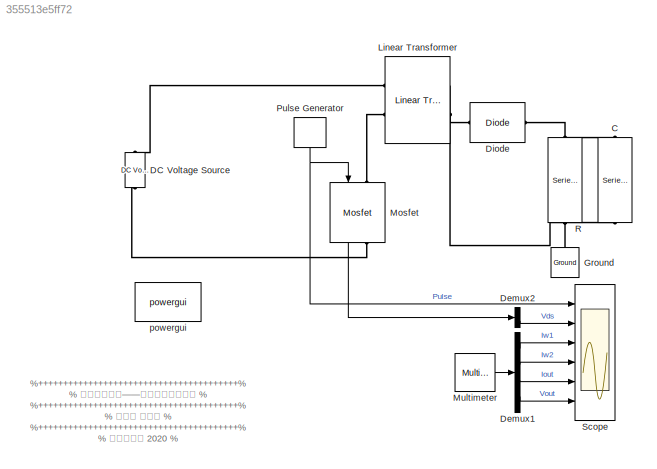
MODEL slx_355513e5ff72
KIND model
BLOCK [Reference] C   REF=powerlib/Elements/Series RLC Branch
  BranchType = C
  Capacitance = 1000e-6
  Inductance = 1e-3
  InitialCurrent = 0
  InitialVoltage = 0
  LConnTagsString = __new0
  Measurements = Branch voltage
  Ports = [0, 0, 0, 0, 0, 1, 1]
  RConnTagsString = __new0
  Resistance = 1
  SetiL0 = off
  Setx0 = off
  SourceBlock = powerlib/Elements/Series RLC Branch
  SourceType = Series RLC Branch
BLOCK [Reference] DC Voltage Source  REF=powerlib/Electrical
Sources/DC Voltage Source
  Amplitude = 100
  Measurements = None
  Ports = [0, 0, 0, 0, 0, 1, 1]
  SourceBlock = powerlib/Electrical\nSources/DC Voltage Source
  SourceType = DC Voltage Source
BLOCK [Demux] Demux1
  DisplayOption = bar
  Ports = [1, 4]
BLOCK [Demux] Demux2
  DisplayOption = bar
  Outputs = 2
  Ports = [1, 2]
BLOCK [Reference] Diode  REF=powerlib/Power
Electronics/Diode
  Cs = Inf
  IC = 0
  Lon = 1e-8
  Measurements = off
  Ports = [0, 0, 0, 0, 0, 1, 1]
  Ron = 0.05
  Rs = 1e5
  SourceBlock = powerlib/Power\nElectronics/Diode
  SourceType = Diode
  UseSnubber = off
  Vf = 0.7
BLOCK [Reference] Ground  REF=powerlib/Elements/Ground
  LConnTagsString = a
  Ports = [0, 0, 0, 0, 0, 1]
  SourceBlock = powerlib/Elements/Ground
  SourceType = Ground
BLOCK [Reference] Linear Transformer  REF=powerlib/Elements/Linear Transformer
  DataType = on
  Measurements = Winding currents
  NominalPower = [250e6 60]
  Ports = [0, 0, 0, 0, 0, 2, 2]
  RmLm = [Inf 500e-6]
  SourceBlock = powerlib/Elements/Linear Transformer
  SourceType = Linear Transformer
  ThreeWindings = off
  UNITS = SI
  winding1 = [100 0 0]
  winding2 = [20 0 0]
  winding3 = [3.15e+05 0.7938 0.084223]
BLOCK [Reference] Mosfet  REF=powerlib/Power
Electronics/Mosfet
  Cs = inf
  IC = 0
  Lon = 0
  Measurements = on
  Ports = [1, 1, 0, 0, 0, 1, 1]
  Rd = 0.01
  Ron = 0.1
  Rs = 1e5
  SourceBlock = powerlib/Power\nElectronics/Mosfet
  SourceType = Mosfet
  Vfd = 0
BLOCK [Reference] Multimeter  REF=powerlib/Measurements/Multimeter
  AxesSetting = [0,0.1,-100,100]
  Display = 0
  Gain = [1 1 1 1]
  L = 4
  OutputType = Complex
  PSBOutputType = 1
  PSBequivalent = 0
  PhasorSimulation = off
  Ports = [0, 1]
  SavedBlockNames = -11
  SourceBlock = powerlib/Measurements/Multimeter
  SourceType = MultimeterPSB
  sel = [3 4 2 1]
  yselected = {'Iw1: Linear Transformer','Iw2: Linear Transformer','Ib: R ','Ub: C '};
BLOCK [DiscretePulseGenerator] Pulse Generator
  Period = 1e-4
  Ports = [0, 1]
  PulseType = Time based
  PulseWidth = 50
BLOCK [Reference] R   REF=powerlib/Elements/Series RLC Branch
  BranchType = R
  Capacitance = 1e-6
  Inductance = 1e-3
  InitialCurrent = 0
  InitialVoltage = 0
  LConnTagsString = __new0
  Measurements = Branch current
  Ports = [0, 0, 0, 0, 0, 1, 1]
  RConnTagsString = __new0
  Resistance = 1
  SetiL0 = off
  Setx0 = off
  SourceBlock = powerlib/Elements/Series RLC Branch
  SourceType = Series RLC Branch
BLOCK [Scope] Scope
  Floating = off
  LimitDataPoints = off
  MaxDataPoints = 7000
  NumInputPorts = 6
  Ports = [6]
  ShowLegends = off
  TimeRange = 0.005
  YMax = 2~250~15~100~5~5
  YMin = -1~-50~-5~-50~-5~-5
  ZoomMode = xonly
BLOCK [Reference] powergui  REF=powerlib/powergui
  DisableRonSwitches = off
  DisableSnubberDevices = on
  DisableVfSwitches = off
  DisplayEquations = off
  DisplayStyle = 1
  EnableUseOfTLC = off
  ErrMax = 1e-4
  Frange = [0:2:500]
  FreqAxis = off
  FunctionMessages = off
  HookPort = off
  Interpol = off
  Iterations = 50
  MaxFrequency = 1000
  Pbase = 100e6
  Ports = []
  Priority = 1
  ResistiveCurrentMeasurement = off
  RestoreLinks = warning
  RmsSteady = 1
  SPID = on
  SampleTime = Ts
  ShowGrid = off
  SolverType = Tustin/Backward Euler (TBE)
  SourceBlock = powerlib/powergui
  SourceType = PSB option menu block
  StartTime = 0.0
  SwTol = 0
  Ts = 100
  UnitsV = kV
  UnitsW = MW
  UserDataPersistent = on
  Xlog = on
  Ylog = off
  ZoomFFT = off
  cycles = 1
  display = off
  echomessages = off
  frequency = 60
  frequencyindice = 0
  frequencyindicesteady = 1
  fundamental = 60
  methode = off
  save = off
  structure = 0
  variable = ZData
  x0status = blocks
ANNOTATION (root): %++++++++++++++++++++++++++++++++++++++++% % 模拟电路基础——从系统级到电路级 % %++++++++++++++++++++++++++++++++++++++++% % 陈抗生 周金芳 % %++++++++++++++++++++++++++++++++++++++++% % 科学出版社 2020 % %++++++++++++++++++++++++++++++++++++++++%
LINE Demux1:1 -> Scope:3
LINE Demux1:2 -> Scope:4
LINE Demux1:3 -> Scope:5
LINE Demux1:4 -> Scope:6
LINE Demux2:2 -> Scope:2
LINE Mosfet:1 -> Demux2:1
LINE Multimeter:1 -> Demux1:1
NET Pulse Generator:1 -> Mosfet:1, Scope:1
PNET net1: C :LConn1 -- Diode:RConn1 -- R :LConn1
PNET net2: C :RConn1 -- Ground:LConn1 -- Linear Transformer:RConn1 -- R :RConn1
PLINE DC Voltage Source:LConn1 -- Mosfet:RConn1
PLINE DC Voltage Source:RConn1 -- Linear Transformer:LConn1
PLINE Diode:LConn1 -- Linear Transformer:RConn2
PLINE Linear Transformer:LConn2 -- Mosfet:LConn1
note: NET lines group one-source signal fan-out (src -> all destinations, sorted); 1:1 wires keep LINE; PNET lines group multi-terminal physical nets as a canonical sorted terminal list (undirected conserving connections); 2-terminal nets keep the pairwise PLINE form
